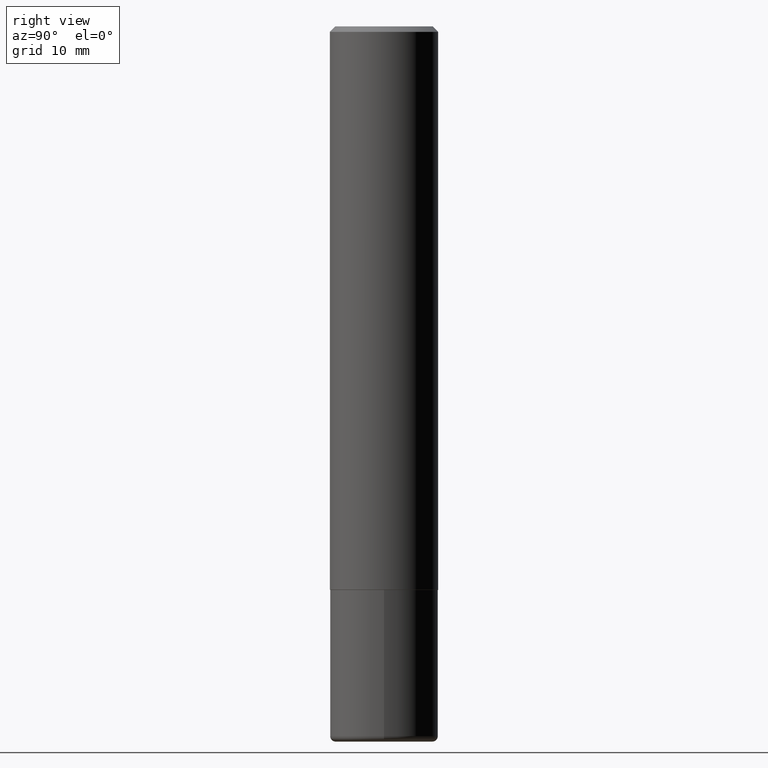
[diagram: clean part render]
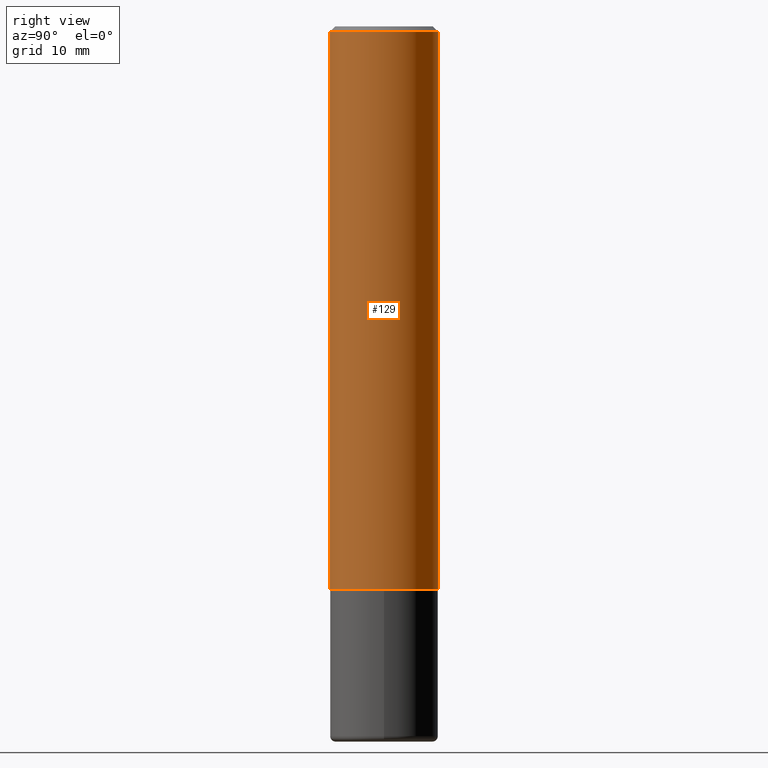
[diagram: same view with one face highlighted and labeled with its STEP entity id]
A machine part, right view. The second image highlights one B-rep face of the part: STEP entity #129.
In plain terms, the highlighted cylindrical surface (partial cylindrical patch) has radius 5 mm, axis along (-0, 0, 1).
Its self-contained STEP definition (entity closure, byte-faithful):
#8 = ORIENTED_EDGE ( 'NONE', *, *, #223, .F. ) ;
#39 = ORIENTED_EDGE ( 'NONE', *, *, #304, .T. ) ;
#44 = DIRECTION ( 'NONE',  ( -6.982962677686265922E-15, -1.000000000000000000, 4.163344669033670112E-15 ) ) ;
#68 = ORIENTED_EDGE ( 'NONE', *, *, #72, .F. ) ;
#70 = VECTOR ( 'NONE', #155, 39.37007874015748143 ) ;
#72 = EDGE_CURVE ( 'NONE', #217, #299, #100, .T. ) ;
#81 = DIRECTION ( 'NONE',  ( -2.446014387336123276E-29, 3.490700035582381786E-15, 1.000000000000000000 ) ) ;
#88 = LINE ( 'NONE', #348, #70 ) ;
#100 = CIRCLE ( 'NONE', #412, 0.1968500000000000250 ) ;
#105 = DIRECTION ( 'NONE',  ( -6.982962677686265922E-15, -1.000000000000000000, 3.490700035582381786E-15 ) ) ;
#120 = CARTESIAN_POINT ( 'NONE',  ( -1.350489030861325429E-15, -0.1968500000000000805, -0.01999999999999935510 ) ) ;
#124 = CARTESIAN_POINT ( 'NONE',  ( 1.374596203102542003E-15, 0.1968499999999999417, -0.02000000000000072900 ) ) ;
#126 = FACE_OUTER_BOUND ( 'NONE', #292, .T. ) ;
#129 = ADVANCED_FACE ( 'NONE', ( #126 ), #269, .T. ) ;
#146 = ORIENTED_EDGE ( 'NONE', *, *, #185, .T. ) ;
#154 = CARTESIAN_POINT ( 'NONE',  ( 4.892028774672256712E-31, -6.981400071164778067E-17, -0.02000000000000004205 ) ) ;
#155 = DIRECTION ( 'NONE',  ( -2.446014387336123276E-29, 3.490700035582381786E-15, 1.000000000000000000 ) ) ;
#185 = EDGE_CURVE ( 'NONE', #253, #388, #315, .T. ) ;
#193 = DIRECTION ( 'NONE',  ( -2.446014387336123276E-29, 3.490700035582381786E-15, 1.000000000000000000 ) ) ;
#217 = VERTEX_POINT ( 'NONE', #120 ) ;
#220 = AXIS2_PLACEMENT_3D ( 'NONE', #374, #81, #44 ) ;
#223 = EDGE_CURVE ( 'NONE', #253, #217, #88, .T. ) ;
#237 = DIRECTION ( 'NONE',  ( -2.446014387336123276E-29, 3.490700035582381786E-15, 1.000000000000000000 ) ) ;
#250 = AXIS2_PLACEMENT_3D ( 'NONE', #389, #237, #105 ) ;
#253 = VERTEX_POINT ( 'NONE', #410 ) ;
#268 = LINE ( 'NONE', #363, #369 ) ;
#269 = CYLINDRICAL_SURFACE ( 'NONE', #250, 0.1968500000000001082 ) ;
#288 = DIRECTION ( 'NONE',  ( -2.446014387336123276E-29, 3.490700035582381786E-15, 1.000000000000000000 ) ) ;
#292 = EDGE_LOOP ( 'NONE', ( #146, #39, #68, #8 ) ) ;
#299 = VERTEX_POINT ( 'NONE', #124 ) ;
#304 = EDGE_CURVE ( 'NONE', #388, #299, #268, .T. ) ;
#315 = CIRCLE ( 'NONE', #220, 0.1968500000000002470 ) ;
#327 = DIRECTION ( 'NONE',  ( -6.982962677686265133E-15, -1.000000000000000000, 3.491137977679279424E-15 ) ) ;
#341 = CARTESIAN_POINT ( 'NONE',  ( 1.398703375343783820E-15, 0.1968499999999931416, -2.046200000000001129 ) ) ;
#348 = CARTESIAN_POINT ( 'NONE',  ( -1.374596203102542200E-15, -0.1968500000000001082, 6.871443020043921939E-16 ) ) ;
#363 = CARTESIAN_POINT ( 'NONE',  ( 1.398703375343757788E-15, 0.1968500000000001082, -6.871443020043921939E-16 ) ) ;
#369 = VECTOR ( 'NONE', #193, 39.37007874015748143 ) ;
#374 = CARTESIAN_POINT ( 'NONE',  ( 5.005034639367176038E-29, -7.142670412808670312E-15, -2.046200000000000241 ) ) ;
#388 = VERTEX_POINT ( 'NONE', #341 ) ;
#389 = CARTESIAN_POINT ( 'NONE',  ( 0.000000000000000000, 0.000000000000000000, 0.000000000000000000 ) ) ;
#410 = CARTESIAN_POINT ( 'NONE',  ( -1.374596203102493093E-15, -0.1968500000000073802, -2.046199999999999353 ) ) ;
#412 = AXIS2_PLACEMENT_3D ( 'NONE', #154, #288, #327 ) ;